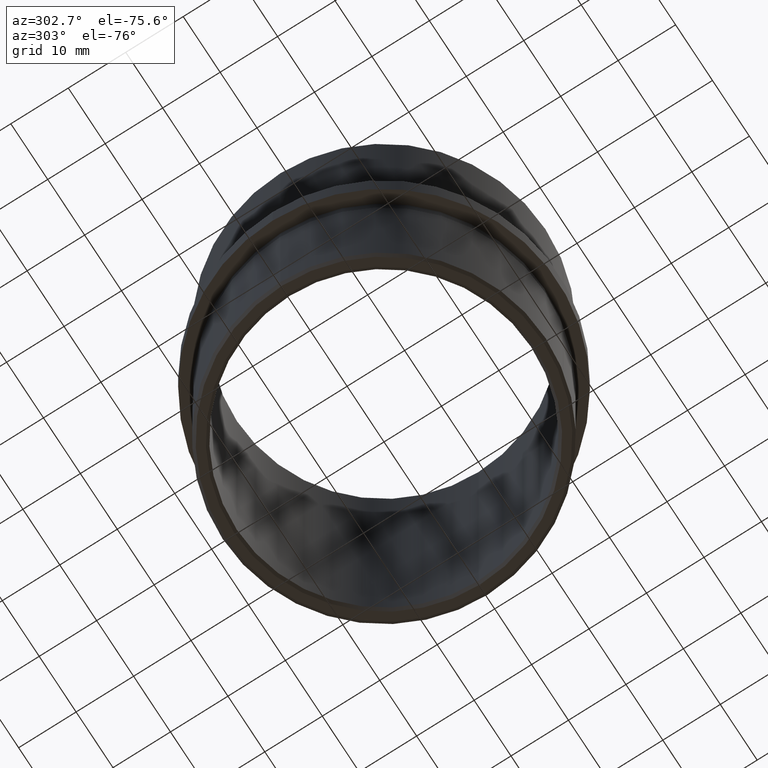
[diagram: clean part render]
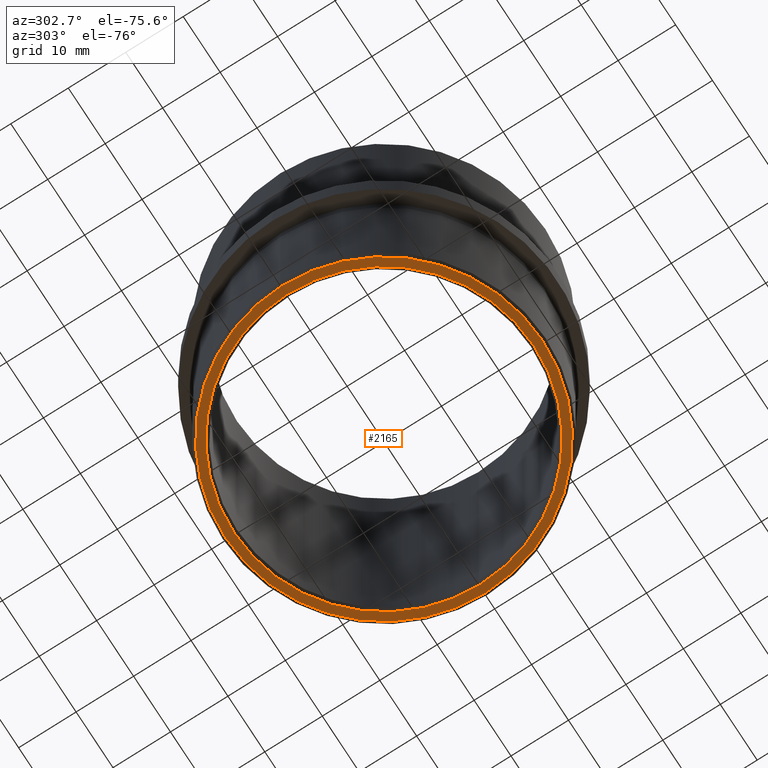
[diagram: same view with one face highlighted and labeled with its STEP entity id]
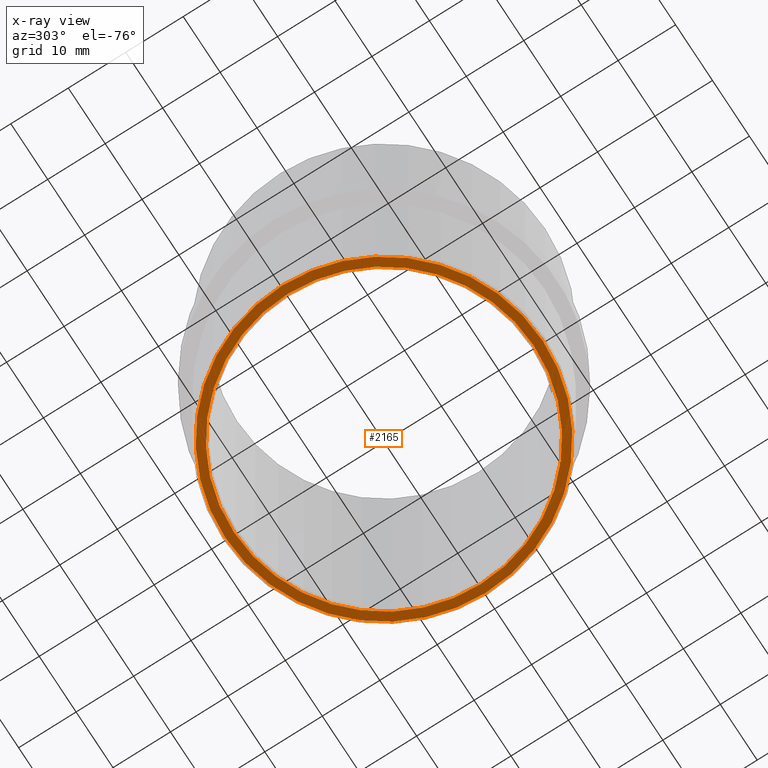
[diagram: x-ray of the same camera — body ghosted, the highlighted face saturated]
A machine part, auxiliary view. The second image highlights one B-rep face of the part: STEP entity #2165.
The next image is the same camera in x-ray: the body ghosted, the highlighted face saturated — about 0% of this face is hidden behind the body in this view.
In plain terms, the highlighted planar face has unit normal (0, 0, -1).
Its self-contained STEP definition (entity closure, byte-faithful):
#569 = AXIS2_PLACEMENT_3D ( 'NONE', #14203, #7521, #12610 ) ;
#588 = DIRECTION ( 'NONE',  ( -0.0000000000000000000, -0.0000000000000000000, 1.000000000000000000 ) ) ;
#878 = AXIS2_PLACEMENT_3D ( 'NONE', #17196, #3881, #2277 ) ;
#2165 = ADVANCED_FACE ( 'NONE', ( #10607, #5697 ), #19321, .T. ) ;
#2277 = DIRECTION ( 'NONE',  ( -1.000000000000000000, 0.0000000000000000000, 0.0000000000000000000 ) ) ;
#2618 = CARTESIAN_POINT ( 'NONE',  ( 0.0000000000000000000, 0.0000000000000000000, -32.50000000000000000 ) ) ;
#3881 = DIRECTION ( 'NONE',  ( -0.0000000000000000000, -0.0000000000000000000, 1.000000000000000000 ) ) ;
#4359 = ORIENTED_EDGE ( 'NONE', *, *, #10824, .T. ) ;
#4600 = ORIENTED_EDGE ( 'NONE', *, *, #13310, .T. ) ;
#5306 = CARTESIAN_POINT ( 'NONE',  ( 0.0000000000000000000, 0.0000000000000000000, -32.50000000000000000 ) ) ;
#5351 = CIRCLE ( 'NONE', #20930, 26.10000000000001200 ) ;
#5353 = DIRECTION ( 'NONE',  ( 0.0000000000000000000, 0.0000000000000000000, -1.000000000000000000 ) ) ;
#5579 = CIRCLE ( 'NONE', #12515, 27.60000000000001600 ) ;
#5697 = FACE_BOUND ( 'NONE', #6376, .T. ) ;
#6376 = EDGE_LOOP ( 'NONE', ( #17386, #4359 ) ) ;
#6882 = EDGE_CURVE ( 'NONE', #12576, #15322, #17468, .T. ) ;
#7384 = CIRCLE ( 'NONE', #18129, 27.60000000000001600 ) ;
#7521 = DIRECTION ( 'NONE',  ( 0.0000000000000000000, 0.0000000000000000000, -1.000000000000000000 ) ) ;
#8083 = CARTESIAN_POINT ( 'NONE',  ( -27.60000000000001600, 3.410641335625379200E-015, -32.50000000000000000 ) ) ;
#9013 = EDGE_LOOP ( 'NONE', ( #10792, #4600 ) ) ;
#9212 = DIRECTION ( 'NONE',  ( -1.000000000000000000, 0.0000000000000000000, 0.0000000000000000000 ) ) ;
#9803 = DIRECTION ( 'NONE',  ( 0.0000000000000000000, 0.0000000000000000000, -1.000000000000000000 ) ) ;
#10405 = CARTESIAN_POINT ( 'NONE',  ( 0.0000000000000000000, 0.0000000000000000000, -32.50000000000000000 ) ) ;
#10607 = FACE_OUTER_BOUND ( 'NONE', #9013, .T. ) ;
#10792 = ORIENTED_EDGE ( 'NONE', *, *, #12901, .T. ) ;
#10824 = EDGE_CURVE ( 'NONE', #15322, #12576, #5351, .T. ) ;
#12515 = AXIS2_PLACEMENT_3D ( 'NONE', #2618, #9803, #9212 ) ;
#12576 = VERTEX_POINT ( 'NONE', #16755 ) ;
#12610 = DIRECTION ( 'NONE',  ( 1.000000000000000000, 0.0000000000000000000, 0.0000000000000000000 ) ) ;
#12901 = EDGE_CURVE ( 'NONE', #17955, #14768, #5579, .T. ) ;
#13310 = EDGE_CURVE ( 'NONE', #14768, #17955, #7384, .T. ) ;
#14203 = CARTESIAN_POINT ( 'NONE',  ( 0.0000000000000000000, 0.0000000000000000000, -32.50000000000000000 ) ) ;
#14768 = VERTEX_POINT ( 'NONE', #8083 ) ;
#15175 = DIRECTION ( 'NONE',  ( -1.000000000000000000, 0.0000000000000000000, 0.0000000000000000000 ) ) ;
#15322 = VERTEX_POINT ( 'NONE', #16501 ) ;
#15341 = DIRECTION ( 'NONE',  ( -1.000000000000000000, 0.0000000000000000000, 0.0000000000000000000 ) ) ;
#15505 = CARTESIAN_POINT ( 'NONE',  ( 27.60000000000001600, 0.0000000000000000000, -32.50000000000000000 ) ) ;
#16501 = CARTESIAN_POINT ( 'NONE',  ( 26.10000000000001200, 3.196328145774593500E-015, -32.50000000000000000 ) ) ;
#16755 = CARTESIAN_POINT ( 'NONE',  ( -26.10000000000001200, 0.0000000000000000000, -32.50000000000000000 ) ) ;
#17196 = CARTESIAN_POINT ( 'NONE',  ( 0.0000000000000000000, 0.0000000000000000000, -32.50000000000000000 ) ) ;
#17386 = ORIENTED_EDGE ( 'NONE', *, *, #6882, .T. ) ;
#17468 = CIRCLE ( 'NONE', #878, 26.10000000000001200 ) ;
#17955 = VERTEX_POINT ( 'NONE', #15505 ) ;
#18129 = AXIS2_PLACEMENT_3D ( 'NONE', #10405, #5353, #15175 ) ;
#19321 = PLANE ( 'NONE',  #569 ) ;
#20930 = AXIS2_PLACEMENT_3D ( 'NONE', #5306, #588, #15341 ) ;